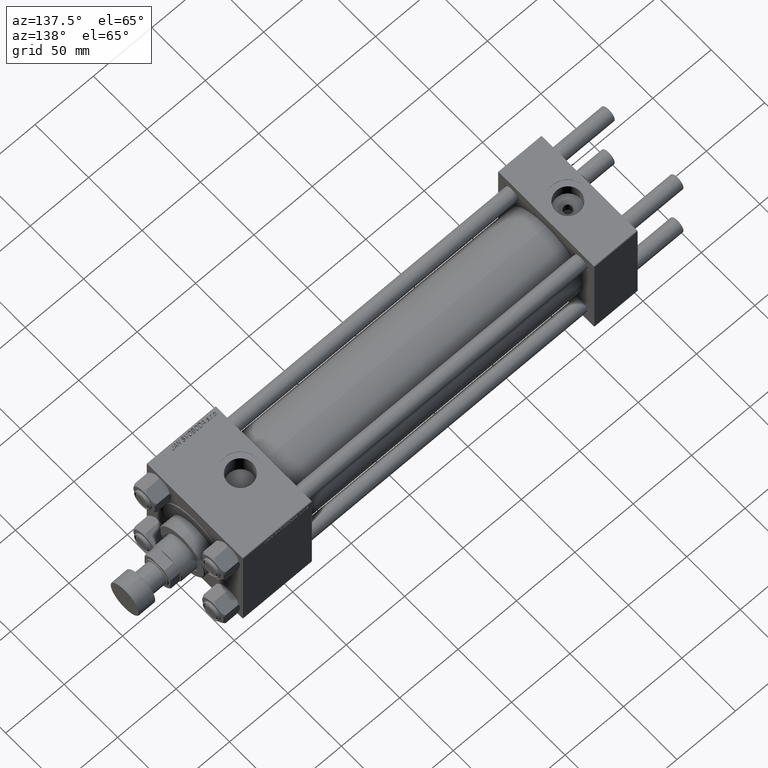
[diagram: clean part render]
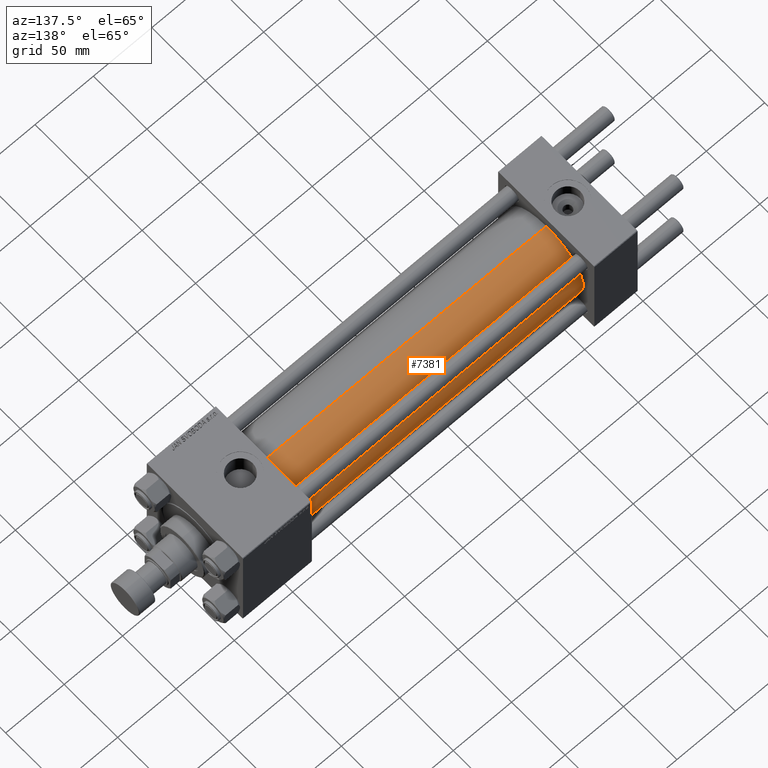
[diagram: same view with one face highlighted and labeled with its STEP entity id]
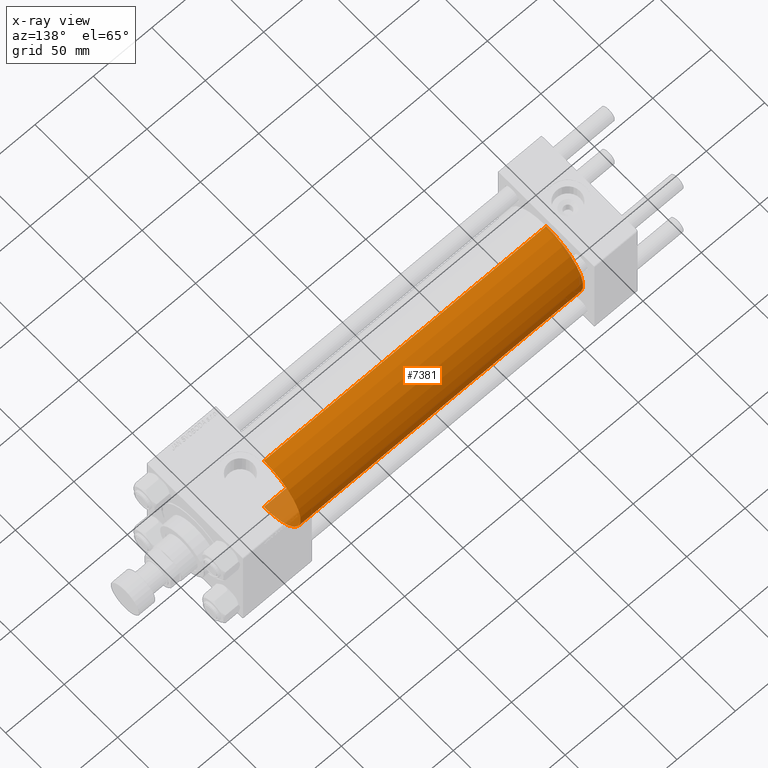
[diagram: x-ray of the same camera — body ghosted, the highlighted face saturated]
A machine part, auxiliary view. The second image highlights one B-rep face of the part: STEP entity #7381.
The next image is the same camera in x-ray: the body ghosted, the highlighted face saturated — about 3% of this face is hidden behind the body in this view.
In plain terms, the highlighted cylindrical surface (partial cylindrical patch) has radius 34.5 mm, axis along (-1, -0, -0).
Its self-contained STEP definition (entity closure, byte-faithful):
#625 = CARTESIAN_POINT ( 'NONE',  ( 278.9999999999999432, 0.000000000000000000, 34.49999999999999289 ) ) ;
#1219 = CARTESIAN_POINT ( 'NONE',  ( 278.9999999999999432, 0.000000000000000000, 0.000000000000000000 ) ) ;
#1684 = CARTESIAN_POINT ( 'NONE',  ( 278.9999999999999432, 4.225031457058367344E-15, -34.49999999999999289 ) ) ;
#1716 = EDGE_CURVE ( 'NONE', #4721, #38570, #10113, .T. ) ;
#2375 = VECTOR ( 'NONE', #7609, 1000.000000000000000 ) ;
#3866 = CIRCLE ( 'NONE', #18433, 34.49999999999999289 ) ;
#4721 = VERTEX_POINT ( 'NONE', #19146 ) ;
#6458 = CARTESIAN_POINT ( 'NONE',  ( 278.9999999999999432, 0.000000000000000000, 0.000000000000000000 ) ) ;
#6940 = DIRECTION ( 'NONE',  ( 0.000000000000000000, 0.000000000000000000, 1.000000000000000000 ) ) ;
#7079 = EDGE_CURVE ( 'NONE', #49447, #4721, #47164, .T. ) ;
#7297 = CARTESIAN_POINT ( 'NONE',  ( 37.00000000000000711, 0.000000000000000000, 34.49999999999999289 ) ) ;
#7381 = ADVANCED_FACE ( 'NONE', ( #40735 ), #33115, .T. ) ;
#7609 = DIRECTION ( 'NONE',  ( -1.000000000000000000, -0.000000000000000000, -0.000000000000000000 ) ) ;
#10113 = CIRCLE ( 'NONE', #38490, 34.49999999999999289 ) ;
#10163 = CARTESIAN_POINT ( 'NONE',  ( 278.9999999999999432, 4.225031457058367344E-15, -34.49999999999999289 ) ) ;
#10264 = DIRECTION ( 'NONE',  ( -1.000000000000000000, -0.000000000000000000, -0.000000000000000000 ) ) ;
#11714 = EDGE_CURVE ( 'NONE', #49447, #26249, #3866, .T. ) ;
#16706 = DIRECTION ( 'NONE',  ( 0.000000000000000000, 0.000000000000000000, -1.000000000000000000 ) ) ;
#17375 = ORIENTED_EDGE ( 'NONE', *, *, #11714, .F. ) ;
#18433 = AXIS2_PLACEMENT_3D ( 'NONE', #1219, #32960, #16706 ) ;
#19146 = CARTESIAN_POINT ( 'NONE',  ( 37.00000000000000711, 4.225031457058367344E-15, -34.49999999999999289 ) ) ;
#26249 = VERTEX_POINT ( 'NONE', #625 ) ;
#30354 = EDGE_CURVE ( 'NONE', #26249, #38570, #34268, .T. ) ;
#32790 = ORIENTED_EDGE ( 'NONE', *, *, #1716, .T. ) ;
#32960 = DIRECTION ( 'NONE',  ( 1.000000000000000000, 0.000000000000000000, 0.000000000000000000 ) ) ;
#33115 = CYLINDRICAL_SURFACE ( 'NONE', #40194, 34.49999999999999289 ) ;
#34268 = LINE ( 'NONE', #42136, #2375 ) ;
#34864 = EDGE_LOOP ( 'NONE', ( #17375, #43450, #32790, #42441 ) ) ;
#36125 = VECTOR ( 'NONE', #44342, 1000.000000000000000 ) ;
#37170 = DIRECTION ( 'NONE',  ( 0.000000000000000000, 0.000000000000000000, 1.000000000000000000 ) ) ;
#38396 = CARTESIAN_POINT ( 'NONE',  ( 37.00000000000000711, 0.000000000000000000, 0.000000000000000000 ) ) ;
#38490 = AXIS2_PLACEMENT_3D ( 'NONE', #38396, #41209, #6940 ) ;
#38570 = VERTEX_POINT ( 'NONE', #7297 ) ;
#40194 = AXIS2_PLACEMENT_3D ( 'NONE', #6458, #10264, #37170 ) ;
#40735 = FACE_OUTER_BOUND ( 'NONE', #34864, .T. ) ;
#41209 = DIRECTION ( 'NONE',  ( 1.000000000000000000, -0.000000000000000000, 0.000000000000000000 ) ) ;
#42136 = CARTESIAN_POINT ( 'NONE',  ( 278.9999999999999432, 0.000000000000000000, 34.49999999999999289 ) ) ;
#42441 = ORIENTED_EDGE ( 'NONE', *, *, #30354, .F. ) ;
#43450 = ORIENTED_EDGE ( 'NONE', *, *, #7079, .T. ) ;
#44342 = DIRECTION ( 'NONE',  ( -1.000000000000000000, -0.000000000000000000, -0.000000000000000000 ) ) ;
#47164 = LINE ( 'NONE', #1684, #36125 ) ;
#49447 = VERTEX_POINT ( 'NONE', #10163 ) ;